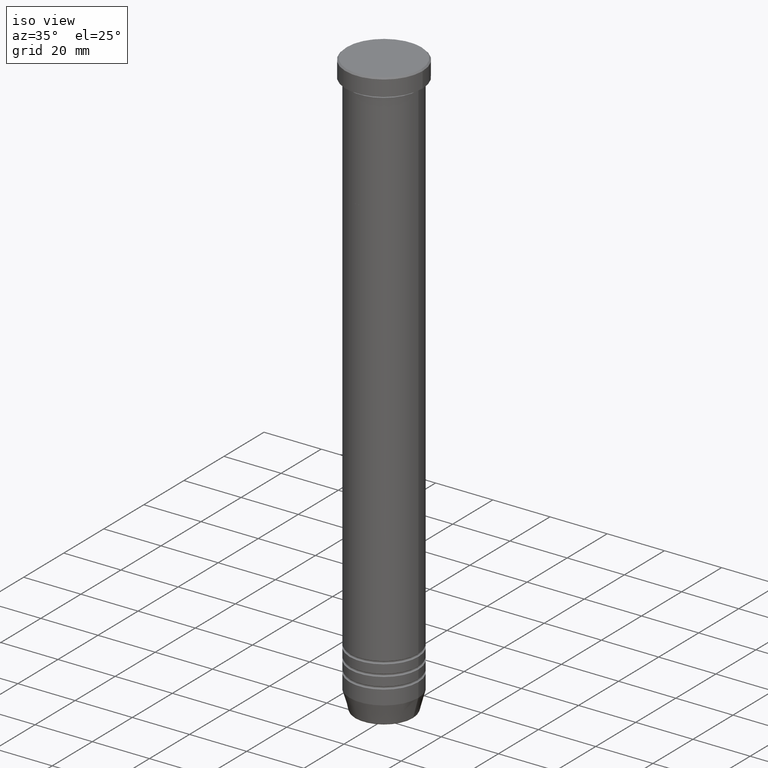
[diagram: clean part render]
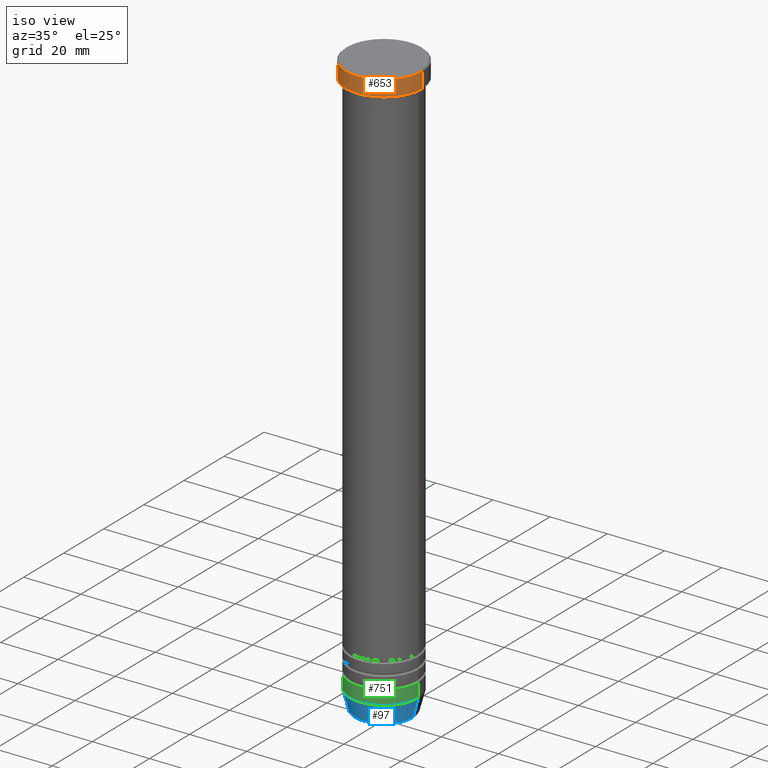
[diagram: same view with three faces highlighted in distinct colors, each labeled with its STEP entity id]
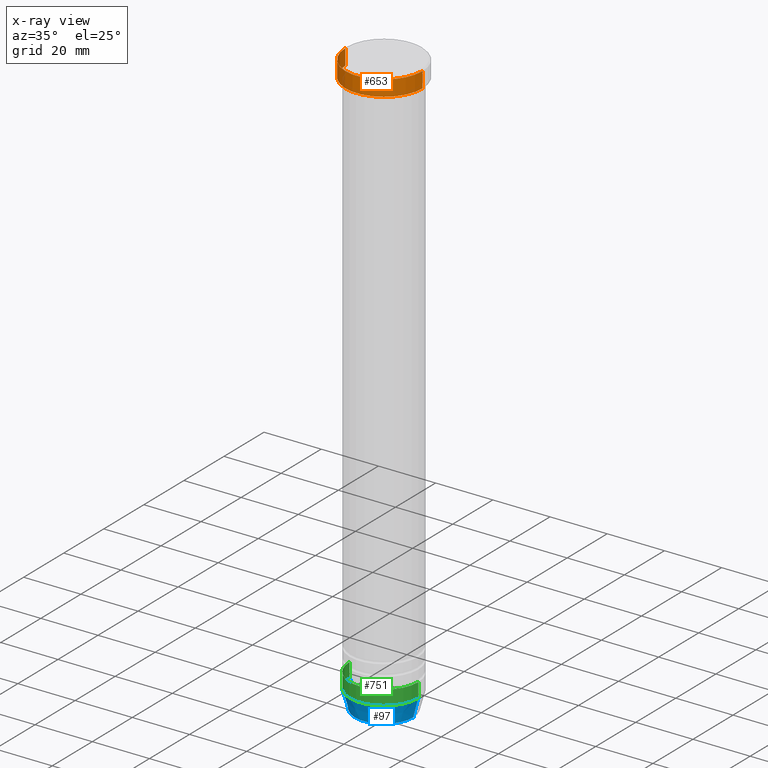
[diagram: x-ray of the same camera — body ghosted, the three highlighted faces saturated]
A machine part, iso view with three faces highlighted in distinct colors.
The next image is the same camera in x-ray (body ghosted, the three faces saturated) — at least one of them is partly hidden behind the body in this view.
Their STEP definitions:

[orange] entity #653 — the highlighted cylindrical surface (partial cylindrical patch) has radius 13.5 mm, axis along (-0, -0, 1).
#12 = EDGE_LOOP ( 'NONE', ( #349, #91, #640, #339 ) ) ;
#21 = VERTEX_POINT ( 'NONE', #229 ) ;
#30 = EDGE_CURVE ( 'NONE', #313, #912, #934, .T. ) ;
#91 = ORIENTED_EDGE ( 'NONE', *, *, #254, .T. ) ;
#177 = AXIS2_PLACEMENT_3D ( 'NONE', #681, #763, #590 ) ;
#220 = FACE_OUTER_BOUND ( 'NONE', #12, .T. ) ;
#229 = CARTESIAN_POINT ( 'NONE',  ( -13.50000000000000000, 1.653273178848926867E-15, -6.000000000000000000 ) ) ;
#254 = EDGE_CURVE ( 'NONE', #21, #313, #1034, .T. ) ;
#257 = CARTESIAN_POINT ( 'NONE',  ( 13.50000000000000000, 0.000000000000000000, -0.5000000000000056621 ) ) ;
#261 = CARTESIAN_POINT ( 'NONE',  ( 0.000000000000000000, 0.000000000000000000, -0.5000000000000056621 ) ) ;
#313 = VERTEX_POINT ( 'NONE', #752 ) ;
#339 = ORIENTED_EDGE ( 'NONE', *, *, #862, .T. ) ;
#349 = ORIENTED_EDGE ( 'NONE', *, *, #425, .F. ) ;
#425 = EDGE_CURVE ( 'NONE', #21, #1038, #769, .T. ) ;
#427 = CARTESIAN_POINT ( 'NONE',  ( 13.50000000000000000, 0.000000000000000000, 0.000000000000000000 ) ) ;
#435 = DIRECTION ( 'NONE',  ( -0.000000000000000000, -0.000000000000000000, 1.000000000000000000 ) ) ;
#468 = CYLINDRICAL_SURFACE ( 'NONE', #607, 13.50000000000000000 ) ;
#503 = DIRECTION ( 'NONE',  ( 0.000000000000000000, 0.000000000000000000, -1.000000000000000000 ) ) ;
#566 = CARTESIAN_POINT ( 'NONE',  ( 0.000000000000000000, 0.000000000000000000, 0.000000000000000000 ) ) ;
#590 = DIRECTION ( 'NONE',  ( 1.000000000000000000, 0.000000000000000000, 0.000000000000000000 ) ) ;
#607 = AXIS2_PLACEMENT_3D ( 'NONE', #566, #834, #1023 ) ;
#623 = DIRECTION ( 'NONE',  ( 1.000000000000000000, 0.000000000000000000, 0.000000000000000000 ) ) ;
#640 = ORIENTED_EDGE ( 'NONE', *, *, #30, .T. ) ;
#653 = ADVANCED_FACE ( 'NONE', ( #220 ), #468, .T. ) ;
#680 = DIRECTION ( 'NONE',  ( -0.000000000000000000, -0.000000000000000000, 1.000000000000000000 ) ) ;
#681 = CARTESIAN_POINT ( 'NONE',  ( 0.000000000000000000, 0.000000000000000000, -6.000000000000000000 ) ) ;
#752 = CARTESIAN_POINT ( 'NONE',  ( 13.50000000000000000, 0.000000000000000000, -6.000000000000000000 ) ) ;
#758 = AXIS2_PLACEMENT_3D ( 'NONE', #261, #503, #623 ) ;
#762 = CARTESIAN_POINT ( 'NONE',  ( -13.50000000000000000, 1.653273178848926867E-15, 0.000000000000000000 ) ) ;
#763 = DIRECTION ( 'NONE',  ( -0.000000000000000000, -0.000000000000000000, 1.000000000000000000 ) ) ;
#769 = LINE ( 'NONE', #762, #866 ) ;
#834 = DIRECTION ( 'NONE',  ( -0.000000000000000000, -0.000000000000000000, 1.000000000000000000 ) ) ;
#862 = EDGE_CURVE ( 'NONE', #912, #1038, #1099, .T. ) ;
#866 = VECTOR ( 'NONE', #680, 1000.000000000000000 ) ;
#912 = VERTEX_POINT ( 'NONE', #257 ) ;
#934 = LINE ( 'NONE', #427, #1031 ) ;
#989 = CARTESIAN_POINT ( 'NONE',  ( -13.50000000000000000, 1.653273178848926867E-15, -0.5000000000000056621 ) ) ;
#1023 = DIRECTION ( 'NONE',  ( 1.000000000000000000, 0.000000000000000000, 0.000000000000000000 ) ) ;
#1031 = VECTOR ( 'NONE', #435, 1000.000000000000000 ) ;
#1034 = CIRCLE ( 'NONE', #177, 13.50000000000000000 ) ;
#1038 = VERTEX_POINT ( 'NONE', #989 ) ;
#1099 = CIRCLE ( 'NONE', #758, 13.50000000000000000 ) ;

[blue] entity #97 — the highlighted conical surface has half-angle 15 deg.
#1 = DIRECTION ( 'NONE',  ( 1.000000000000000000, 0.000000000000000000, 0.000000000000000000 ) ) ;
#35 = CARTESIAN_POINT ( 'NONE',  ( 10.22365507213719305, 0.000000000000000000, -205.6294095225512706 ) ) ;
#56 = CARTESIAN_POINT ( 'NONE',  ( -10.12435565298214257, 1.239875974385399138E-15, -206.0000000000000284 ) ) ;
#88 = CARTESIAN_POINT ( 'NONE',  ( 0.000000000000000000, 0.000000000000000000, -206.0000000000000284 ) ) ;
#97 = ADVANCED_FACE ( 'NONE', ( #1072 ), #735, .T. ) ;
#107 = DIRECTION ( 'NONE',  ( -0.000000000000000000, -0.000000000000000000, 1.000000000000000000 ) ) ;
#126 = EDGE_CURVE ( 'NONE', #1132, #253, #700, .T. ) ;
#128 = LINE ( 'NONE', #156, #287 ) ;
#156 = CARTESIAN_POINT ( 'NONE',  ( 10.12435565298214257, 0.000000000000000000, -206.0000000000000284 ) ) ;
#249 = AXIS2_PLACEMENT_3D ( 'NONE', #88, #107, #1 ) ;
#253 = VERTEX_POINT ( 'NONE', #35 ) ;
#255 = ORIENTED_EDGE ( 'NONE', *, *, #1073, .F. ) ;
#287 = VECTOR ( 'NONE', #318, 1000.000000000000114 ) ;
#290 = EDGE_LOOP ( 'NONE', ( #255, #861, #393, #851 ) ) ;
#307 = VECTOR ( 'NONE', #771, 1000.000000000000114 ) ;
#318 = DIRECTION ( 'NONE',  ( 0.2588190451025206840, 0.000000000000000000, 0.9659258262890683122 ) ) ;
#323 = DIRECTION ( 'NONE',  ( -0.000000000000000000, -0.000000000000000000, 1.000000000000000000 ) ) ;
#384 = EDGE_CURVE ( 'NONE', #1126, #1090, #957, .T. ) ;
#393 = ORIENTED_EDGE ( 'NONE', *, *, #1063, .T. ) ;
#406 = CARTESIAN_POINT ( 'NONE',  ( -12.00000000000000178, 1.469576158976824144E-15, -199.0000000000000000 ) ) ;
#415 = CARTESIAN_POINT ( 'NONE',  ( 0.000000000000000000, 0.000000000000000000, -199.0000000000000000 ) ) ;
#441 = CARTESIAN_POINT ( 'NONE',  ( 0.000000000000000000, 0.000000000000000000, -205.6294095225512706 ) ) ;
#448 = AXIS2_PLACEMENT_3D ( 'NONE', #415, #323, #567 ) ;
#493 = CARTESIAN_POINT ( 'NONE',  ( 12.00000000000000178, 0.000000000000000000, -199.0000000000000000 ) ) ;
#506 = LINE ( 'NONE', #56, #307 ) ;
#567 = DIRECTION ( 'NONE',  ( 1.000000000000000000, 0.000000000000000000, 0.000000000000000000 ) ) ;
#664 = AXIS2_PLACEMENT_3D ( 'NONE', #441, #979, #724 ) ;
#700 = CIRCLE ( 'NONE', #664, 10.22365507213719305 ) ;
#724 = DIRECTION ( 'NONE',  ( -1.000000000000000000, 0.000000000000000000, 0.000000000000000000 ) ) ;
#735 = CONICAL_SURFACE ( 'NONE', #249, 10.12435565298214257, 0.2617993877991493523 ) ;
#771 = DIRECTION ( 'NONE',  ( -0.2588190451025206840, 3.169619151431763092E-17, 0.9659258262890683122 ) ) ;
#851 = ORIENTED_EDGE ( 'NONE', *, *, #384, .F. ) ;
#861 = ORIENTED_EDGE ( 'NONE', *, *, #126, .T. ) ;
#957 = CIRCLE ( 'NONE', #448, 12.00000000000000178 ) ;
#979 = DIRECTION ( 'NONE',  ( -0.000000000000000000, -0.000000000000000000, 1.000000000000000000 ) ) ;
#1063 = EDGE_CURVE ( 'NONE', #253, #1090, #128, .T. ) ;
#1072 = FACE_OUTER_BOUND ( 'NONE', #290, .T. ) ;
#1073 = EDGE_CURVE ( 'NONE', #1132, #1126, #506, .T. ) ;
#1090 = VERTEX_POINT ( 'NONE', #493 ) ;
#1117 = CARTESIAN_POINT ( 'NONE',  ( -10.22365507213719305, 1.360806402472382941E-15, -205.6294095225512706 ) ) ;
#1126 = VERTEX_POINT ( 'NONE', #406 ) ;
#1132 = VERTEX_POINT ( 'NONE', #1117 ) ;

[green] entity #751 — the highlighted cylindrical surface (partial cylindrical patch) has radius 12 mm, axis along (-0, -0, 1).
#4 = CARTESIAN_POINT ( 'NONE',  ( -12.00000000000000178, 1.469576158976824144E-15, -194.0000000000000000 ) ) ;
#27 = DIRECTION ( 'NONE',  ( -0.000000000000000000, -0.000000000000000000, 1.000000000000000000 ) ) ;
#108 = VERTEX_POINT ( 'NONE', #4 ) ;
#116 = CARTESIAN_POINT ( 'NONE',  ( -12.00000000000000178, 1.469576158976824144E-15, 0.000000000000000000 ) ) ;
#117 = EDGE_CURVE ( 'NONE', #108, #872, #569, .T. ) ;
#251 = AXIS2_PLACEMENT_3D ( 'NONE', #692, #792, #329 ) ;
#252 = EDGE_LOOP ( 'NONE', ( #1057, #649, #626, #603 ) ) ;
#293 = LINE ( 'NONE', #656, #1084 ) ;
#323 = DIRECTION ( 'NONE',  ( -0.000000000000000000, -0.000000000000000000, 1.000000000000000000 ) ) ;
#329 = DIRECTION ( 'NONE',  ( 1.000000000000000000, 0.000000000000000000, 0.000000000000000000 ) ) ;
#372 = DIRECTION ( 'NONE',  ( 1.000000000000000000, 0.000000000000000000, 0.000000000000000000 ) ) ;
#384 = EDGE_CURVE ( 'NONE', #1126, #1090, #957, .T. ) ;
#406 = CARTESIAN_POINT ( 'NONE',  ( -12.00000000000000178, 1.469576158976824144E-15, -199.0000000000000000 ) ) ;
#415 = CARTESIAN_POINT ( 'NONE',  ( 0.000000000000000000, 0.000000000000000000, -199.0000000000000000 ) ) ;
#430 = CARTESIAN_POINT ( 'NONE',  ( 12.00000000000000178, 0.000000000000000000, -194.0000000000000000 ) ) ;
#448 = AXIS2_PLACEMENT_3D ( 'NONE', #415, #323, #567 ) ;
#493 = CARTESIAN_POINT ( 'NONE',  ( 12.00000000000000178, 0.000000000000000000, -199.0000000000000000 ) ) ;
#545 = DIRECTION ( 'NONE',  ( -0.000000000000000000, -0.000000000000000000, 1.000000000000000000 ) ) ;
#567 = DIRECTION ( 'NONE',  ( 1.000000000000000000, 0.000000000000000000, 0.000000000000000000 ) ) ;
#569 = CIRCLE ( 'NONE', #938, 12.00000000000000178 ) ;
#603 = ORIENTED_EDGE ( 'NONE', *, *, #117, .F. ) ;
#626 = ORIENTED_EDGE ( 'NONE', *, *, #711, .T. ) ;
#632 = EDGE_CURVE ( 'NONE', #1126, #108, #1091, .T. ) ;
#649 = ORIENTED_EDGE ( 'NONE', *, *, #384, .T. ) ;
#656 = CARTESIAN_POINT ( 'NONE',  ( 12.00000000000000178, 0.000000000000000000, 0.000000000000000000 ) ) ;
#692 = CARTESIAN_POINT ( 'NONE',  ( 0.000000000000000000, 0.000000000000000000, 0.000000000000000000 ) ) ;
#711 = EDGE_CURVE ( 'NONE', #1090, #872, #293, .T. ) ;
#751 = ADVANCED_FACE ( 'NONE', ( #860 ), #886, .T. ) ;
#792 = DIRECTION ( 'NONE',  ( -0.000000000000000000, -0.000000000000000000, 1.000000000000000000 ) ) ;
#804 = CARTESIAN_POINT ( 'NONE',  ( 0.000000000000000000, 0.000000000000000000, -194.0000000000000000 ) ) ;
#854 = DIRECTION ( 'NONE',  ( -0.000000000000000000, -0.000000000000000000, 1.000000000000000000 ) ) ;
#860 = FACE_OUTER_BOUND ( 'NONE', #252, .T. ) ;
#872 = VERTEX_POINT ( 'NONE', #430 ) ;
#882 = VECTOR ( 'NONE', #27, 1000.000000000000000 ) ;
#886 = CYLINDRICAL_SURFACE ( 'NONE', #251, 12.00000000000000178 ) ;
#938 = AXIS2_PLACEMENT_3D ( 'NONE', #804, #545, #372 ) ;
#957 = CIRCLE ( 'NONE', #448, 12.00000000000000178 ) ;
#1057 = ORIENTED_EDGE ( 'NONE', *, *, #632, .F. ) ;
#1084 = VECTOR ( 'NONE', #854, 1000.000000000000000 ) ;
#1090 = VERTEX_POINT ( 'NONE', #493 ) ;
#1091 = LINE ( 'NONE', #116, #882 ) ;
#1126 = VERTEX_POINT ( 'NONE', #406 ) ;